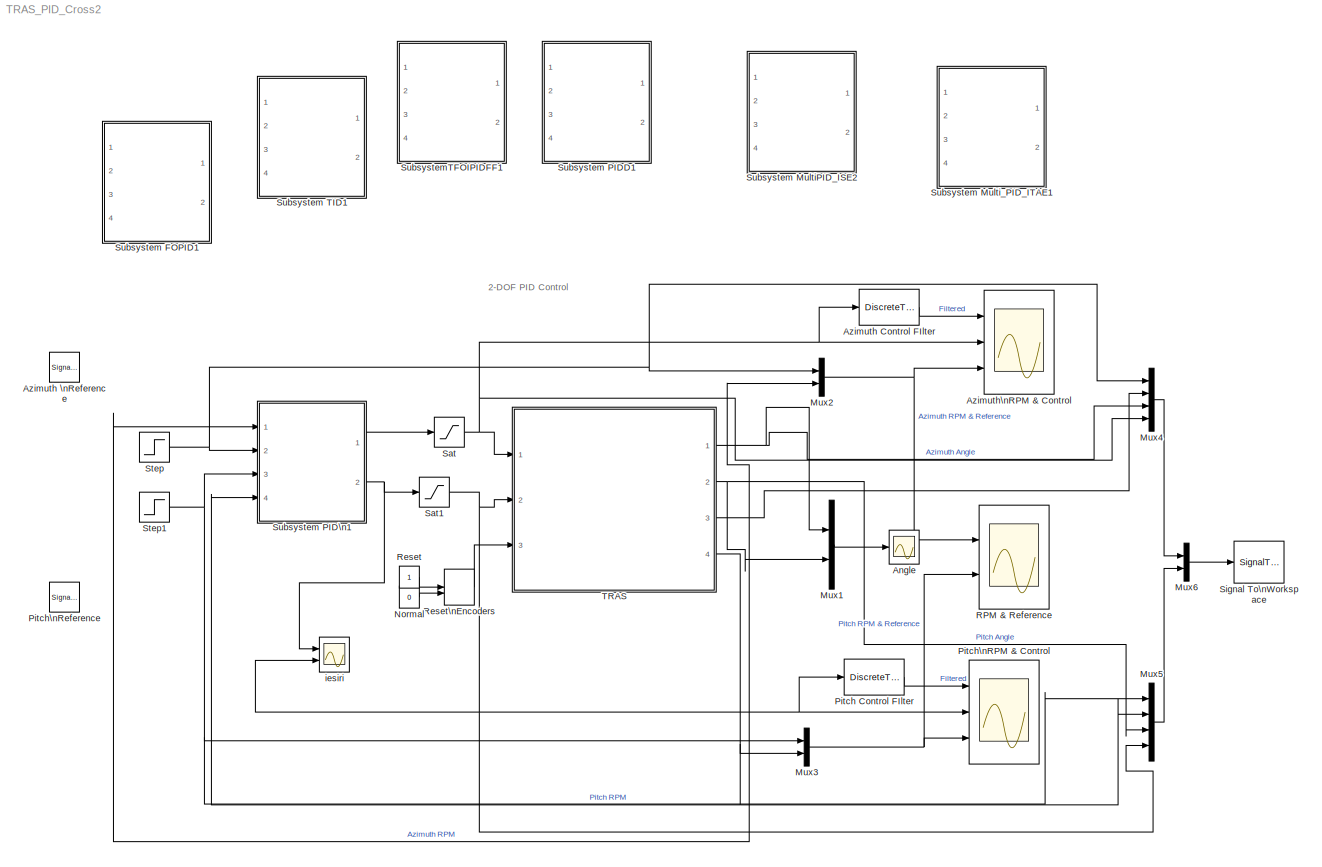
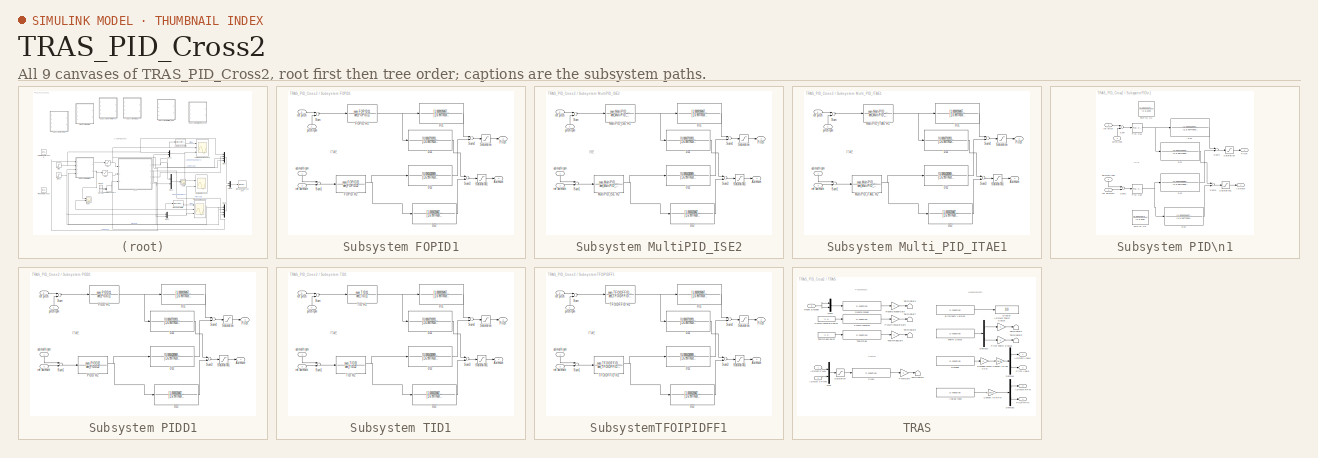
[diagram: thumbnail index - all 9 canvases of the model, root first then tree order]
MODEL TRAS_PID_Cross2
KIND model
BLOCK [Scope] Angle
  DataFormat = StructureWithTime
  ExtModeLoggingTrig = on
  ExtModeUploadOption = log
  Floating = off
  MaxDataPoints = 12000
  NumInputPorts = 1
  Ports = [1]
  SID = 45
  SampleTime = 0
  SaveName = RPM_
  SaveToWorkspace = on
  ShowLegends = off
  TimeRange = 90
  YMax = 0.5
  YMin = -0.8
BLOCK [DiscreteTransferFcn] Azimuth Control FIlter
  Denominator = [1.0000   -3.9845    6.4349   -5.2536    2.1651   -0.3599]
  InputPortMap = u0
  Numerator = [0.0598    0.2990    0.5980    0.5980    0.2990    0.0598] * 1e-3
  Ports = [1, 1]
  SID = 4
  SampleTime = 0.01
BLOCK [SignalGenerator] Azimuth \nReference
  Amplitude = .8
  Frequency = .025
  Ports = [0, 1]
  SID = 3
  WaveForm = square
BLOCK [Scope] Azimuth\nRPM & Control
  DataFormat = StructureWithTime
  ExtModeLoggingTrig = on
  ExtModeUploadOption = log
  Floating = off
  MaxDataPoints = 12000
  NumInputPorts = 3
  Ports = [3]
  SID = 2
  SampleTime = 0
  SaveName = AngleCtrl_
  SaveToWorkspace = on
  ShowLegends = off
  TimeRange = 90
  YMax = -0.225~0.5~250
  YMin = -0.4~-0.5~-2000
  ZoomMode = xonly
BLOCK [Mux] Mux1
  DisplayOption = bar
  Inputs = 2
  Ports = [2, 1]
  SID = 6
BLOCK [Mux] Mux2
  DisplayOption = bar
  Inputs = 2
  Ports = [2, 1]
  SID = 7
BLOCK [Mux] Mux3
  DisplayOption = bar
  Inputs = 2
  Ports = [2, 1]
  SID = 8
BLOCK [Mux] Mux4
  DisplayOption = bar
  Ports = [4, 1]
  SID = 163
BLOCK [Mux] Mux5
  DisplayOption = bar
  Ports = [4, 1]
  SID = 164
BLOCK [Mux] Mux6
  DisplayOption = bar
  Inputs = 2
  Ports = [2, 1]
  SID = 248
BLOCK [Constant] Normal
  SID = 9
  Value = 0
BLOCK [DiscreteTransferFcn] Pitch Control FIlter
  Denominator = [1.0000   -3.9845    6.4349   -5.2536    2.1651   -0.3599]
  InputPortMap = u0
  Numerator = [0.0598    0.2990    0.5980    0.5980    0.2990    0.0598] * 1e-3
  Ports = [1, 1]
  SID = 44
  SampleTime = 0.01
BLOCK [Scope] Pitch\nRPM & Control
  DataFormat = StructureWithTime
  ExtModeLoggingTrig = on
  ExtModeUploadOption = log
  Floating = off
  MaxDataPoints = 12000
  NumInputPorts = 3
  Ports = [3]
  SID = 42
  SampleTime = 0
  SaveName = AngleCtrl1_
  SaveToWorkspace = on
  ShowLegends = off
  TimeRange = 90
  YMax = 0.75~0.9~100
  YMin = 2.77556e-17~-0.1~-1300
BLOCK [SignalGenerator] Pitch\nReference
  Amplitude = .3
  Frequency = 1/30
  Ports = [0, 1]
  SID = 43
BLOCK [Scope] RPM & Reference
  DataFormat = StructureWithTime
  ExtModeLoggingTrig = on
  ExtModeUploadOption = log
  Floating = off
  MaxDataPoints = 12000
  NumInputPorts = 2
  Ports = [2]
  SID = 1
  SampleTime = 0
  SaveName = AngleReference_
  SaveToWorkspace = on
  ShowLegends = off
  TimeRange = 90
  YMax = 1250~125
  YMin = -1000~-100
  ZoomMode = xonly
BLOCK [Constant] Reset
  SID = 46
BLOCK [ManualSwitch] Reset\nEncoders
  CurrentSetting = 0
  SID = 47
BLOCK [Saturate] Sat
  InputPortMap = u0
  Ports = [1, 1]
  SID = 48
BLOCK [Saturate] Sat1
  InputPortMap = u0
  LowerLimit = -.2
  Ports = [1, 1]
  SID = 49
  UpperLimit = 1
BLOCK [SignalToWorkspace] Signal To\nWorkspace
  CopyFcn = dspblkcopystw(gcbh);
  MaxDataPoints = inf
  Ports = [1]
  SID = 249
  VariableName = step_pitch
BLOCK [Step] Step
  After = 0
  SID = 161
  SampleTime = 0
  Time = 0
BLOCK [Step] Step1
  After = 0.5
  SID = 162
  SampleTime = 0
  Time = 0
BLOCK [SubSystem] Subsystem FOPID1
  Commented = on
  FunctionWithSeparateData = off
  MaskHideContents = off
  MinAlgLoopOccurrences = off
  Opaque = off
  Ports = [4, 2]
  PropExecContextOutsideSubsystem = off
  RTWSystemCode = Auto
  RequestExecContextInheritance = off
  SID = 626
BLOCK [Outport] Subsystem FOPID1/Azimuth
  IconDisplay = Port number
  SID = 643
BLOCK [TransferFcn] Subsystem FOPID1/D11
  Denominator = [1,6.99777659725802,7.50512468468497]
  Numerator = [1.00000284679131,6.99779030125994,7.50513760323875]
  SID = 631
BLOCK [TransferFcn] Subsystem FOPID1/D12
  Denominator = [1,6.99777659725803,7.50512468468505]
  Numerator = [0.00604389897710873,0.0157679645959730,0.0102823375259034]
  SID = 632
BLOCK [TransferFcn] Subsystem FOPID1/D21
  Denominator = [1,6.99777659725802,7.50512468468497]
  Numerator = [0.000471020349710704,0.00433466168519442,0.00942932713768640]
  SID = 633
BLOCK [TransferFcn] Subsystem FOPID1/D22
  Denominator = [1,6.99777659725803,7.50512468468505]
  Numerator = [1.00000284679131,6.99779030126001,7.50513760323899]
  SID = 634
BLOCK [TransferFcn] Subsystem FOPID1/FOPID H1
  Denominator = den_FOPID11
  Numerator = num_FOPID11
  SID = 635
BLOCK [TransferFcn] Subsystem FOPID1/FOPID H2
  Denominator = den_FOPID22
  Numerator = num_FOPID22
  SID = 636
BLOCK [Outport] Subsystem FOPID1/Pitch
  IconDisplay = Port number
  Port = 2
  SID = 644
BLOCK [Saturate] Subsystem FOPID1/Saturation
  InputPortMap = u0
  Ports = [1, 1]
  SID = 637
BLOCK [Saturate] Subsystem FOPID1/Saturation1
  InputPortMap = u0
  LowerLimit = -0.2
  Ports = [1, 1]
  SID = 638
  UpperLimit = 1
BLOCK [Sum] Subsystem FOPID1/Sum
  InputSameDT = off
  Inputs = +-
  OutDataTypeStr = Inherit: Inherit via internal rule
  Ports = [2, 1]
  SID = 639
BLOCK [Sum] Subsystem FOPID1/Sum1
  InputSameDT = off
  Inputs = -+
  OutDataTypeStr = Inherit: Inherit via internal rule
  Ports = [2, 1]
  SID = 640
BLOCK [Sum] Subsystem FOPID1/Sum3
  InputSameDT = off
  OutDataTypeStr = Inherit: Inherit via internal rule
  Ports = [2, 1]
  SID = 641
BLOCK [Sum] Subsystem FOPID1/Sum4
  InputSameDT = off
  OutDataTypeStr = Inherit: Inherit via internal rule
  Ports = [2, 1]
  SID = 642
BLOCK [Inport] Subsystem FOPID1/azimuth rpm
  IconDisplay = Port number
  SID = 627
BLOCK [Inport] Subsystem FOPID1/pitch rpm
  IconDisplay = Port number
  Port = 4
  SID = 630
BLOCK [Inport] Subsystem FOPID1/ref azimuth
  IconDisplay = Port number
  Port = 2
  SID = 628
BLOCK [Inport] Subsystem FOPID1/ref pitch
  IconDisplay = Port number
  Port = 3
  SID = 629
BLOCK [SubSystem] Subsystem MultiPID_ISE2
  Commented = on
  FunctionWithSeparateData = off
  MaskHideContents = off
  MinAlgLoopOccurrences = off
  Opaque = off
  Ports = [4, 2]
  PropExecContextOutsideSubsystem = off
  RTWSystemCode = Auto
  RequestExecContextInheritance = off
  SID = 472
BLOCK [Outport] Subsystem MultiPID_ISE2/Azimuth
  IconDisplay = Port number
  SID = 489
BLOCK [TransferFcn] Subsystem MultiPID_ISE2/D11
  Denominator = [1,6.99777659725802,7.50512468468497]
  Numerator = [1.00000284679131,6.99779030125994,7.50513760323875]
  SID = 477
BLOCK [TransferFcn] Subsystem MultiPID_ISE2/D12
  Denominator = [1,6.99777659725803,7.50512468468505]
  Numerator = [0.00604389897710873,0.0157679645959730,0.0102823375259034]
  SID = 478
BLOCK [TransferFcn] Subsystem MultiPID_ISE2/D21
  Denominator = [1,6.99777659725802,7.50512468468497]
  Numerator = [0.000471020349710704,0.00433466168519442,0.00942932713768640]
  SID = 479
BLOCK [TransferFcn] Subsystem MultiPID_ISE2/D22
  Denominator = [1,6.99777659725803,7.50512468468505]
  Numerator = [1.00000284679131,6.99779030126001,7.50513760323899]
  SID = 480
BLOCK [TransferFcn] Subsystem MultiPID_ISE2/MultiPID_ISE H1
  Denominator = den_MultiPID_ISE11
  Numerator = num_MultiPID_ISE11
  SID = 481
BLOCK [TransferFcn] Subsystem MultiPID_ISE2/MultiPID_ISE H2
  Denominator = den_MultiPID_ISE22
  Numerator = num_MultiPID_ISE22
  SID = 482
BLOCK [Outport] Subsystem MultiPID_ISE2/Pitch
  IconDisplay = Port number
  Port = 2
  SID = 490
BLOCK [Saturate] Subsystem MultiPID_ISE2/Saturation
  InputPortMap = u0
  Ports = [1, 1]
  SID = 483
BLOCK [Saturate] Subsystem MultiPID_ISE2/Saturation1
  InputPortMap = u0
  LowerLimit = -0.2
  Ports = [1, 1]
  SID = 484
  UpperLimit = 1
BLOCK [Sum] Subsystem MultiPID_ISE2/Sum
  InputSameDT = off
  Inputs = +-
  OutDataTypeStr = Inherit: Inherit via internal rule
  Ports = [2, 1]
  SID = 485
BLOCK [Sum] Subsystem MultiPID_ISE2/Sum1
  InputSameDT = off
  Inputs = -+
  OutDataTypeStr = Inherit: Inherit via internal rule
  Ports = [2, 1]
  SID = 486
BLOCK [Sum] Subsystem MultiPID_ISE2/Sum3
  InputSameDT = off
  OutDataTypeStr = Inherit: Inherit via internal rule
  Ports = [2, 1]
  SID = 487
BLOCK [Sum] Subsystem MultiPID_ISE2/Sum4
  InputSameDT = off
  OutDataTypeStr = Inherit: Inherit via internal rule
  Ports = [2, 1]
  SID = 488
BLOCK [Inport] Subsystem MultiPID_ISE2/azimuth rpm
  IconDisplay = Port number
  SID = 473
BLOCK [Inport] Subsystem MultiPID_ISE2/pitch rpm
  IconDisplay = Port number
  Port = 4
  SID = 476
BLOCK [Inport] Subsystem MultiPID_ISE2/ref azimuth
  IconDisplay = Port number
  Port = 2
  SID = 474
BLOCK [Inport] Subsystem MultiPID_ISE2/ref pitch
  IconDisplay = Port number
  Port = 3
  SID = 475
BLOCK [SubSystem] Subsystem Multi_PID_ITAE1
  Commented = on
  FunctionWithSeparateData = off
  MaskHideContents = off
  MinAlgLoopOccurrences = off
  Opaque = off
  Ports = [4, 2]
  PropExecContextOutsideSubsystem = off
  RTWSystemCode = Auto
  RequestExecContextInheritance = off
  SID = 526
BLOCK [Outport] Subsystem Multi_PID_ITAE1/Azimuth
  IconDisplay = Port number
  SID = 543
BLOCK [TransferFcn] Subsystem Multi_PID_ITAE1/D11
  Denominator = [1,6.99777659725802,7.50512468468497]
  Numerator = [1.00000284679131,6.99779030125994,7.50513760323875]
  SID = 531
BLOCK [TransferFcn] Subsystem Multi_PID_ITAE1/D12
  Denominator = [1,6.99777659725803,7.50512468468505]
  Numerator = [0.00604389897710873,0.0157679645959730,0.0102823375259034]
  SID = 532
BLOCK [TransferFcn] Subsystem Multi_PID_ITAE1/D21
  Denominator = [1,6.99777659725802,7.50512468468497]
  Numerator = [0.000471020349710704,0.00433466168519442,0.00942932713768640]
  SID = 533
BLOCK [TransferFcn] Subsystem Multi_PID_ITAE1/D22
  Denominator = [1,6.99777659725803,7.50512468468505]
  Numerator = [1.00000284679131,6.99779030126001,7.50513760323899]
  SID = 534
BLOCK [TransferFcn] Subsystem Multi_PID_ITAE1/MultiPID_ITAE H1
  Denominator = den_MultiPID_ITAE11
  Numerator = num_MultiPID_ITAE11
  SID = 535
BLOCK [TransferFcn] Subsystem Multi_PID_ITAE1/MultiPID_ITAE H2
  Denominator = den_MultiPID_ITAE22
  Numerator = num_MultiPID_ITAE22
  SID = 536
BLOCK [Outport] Subsystem Multi_PID_ITAE1/Pitch
  IconDisplay = Port number
  Port = 2
  SID = 544
BLOCK [Saturate] Subsystem Multi_PID_ITAE1/Saturation
  InputPortMap = u0
  Ports = [1, 1]
  SID = 537
BLOCK [Saturate] Subsystem Multi_PID_ITAE1/Saturation1
  InputPortMap = u0
  LowerLimit = -0.2
  Ports = [1, 1]
  SID = 538
  UpperLimit = 1
BLOCK [Sum] Subsystem Multi_PID_ITAE1/Sum
  InputSameDT = off
  Inputs = +-
  OutDataTypeStr = Inherit: Inherit via internal rule
  Ports = [2, 1]
  SID = 539
BLOCK [Sum] Subsystem Multi_PID_ITAE1/Sum1
  InputSameDT = off
  Inputs = -+
  OutDataTypeStr = Inherit: Inherit via internal rule
  Ports = [2, 1]
  SID = 540
BLOCK [Sum] Subsystem Multi_PID_ITAE1/Sum3
  InputSameDT = off
  OutDataTypeStr = Inherit: Inherit via internal rule
  Ports = [2, 1]
  SID = 541
BLOCK [Sum] Subsystem Multi_PID_ITAE1/Sum4
  InputSameDT = off
  OutDataTypeStr = Inherit: Inherit via internal rule
  Ports = [2, 1]
  SID = 542
BLOCK [Inport] Subsystem Multi_PID_ITAE1/azimuth rpm
  IconDisplay = Port number
  SID = 527
BLOCK [Inport] Subsystem Multi_PID_ITAE1/pitch rpm
  IconDisplay = Port number
  Port = 4
  SID = 530
BLOCK [Inport] Subsystem Multi_PID_ITAE1/ref azimuth
  IconDisplay = Port number
  Port = 2
  SID = 528
BLOCK [Inport] Subsystem Multi_PID_ITAE1/ref pitch
  IconDisplay = Port number
  Port = 3
  SID = 529
BLOCK [SubSystem] Subsystem PIDD1
  Commented = on
  FunctionWithSeparateData = off
  MaskHideContents = off
  MinAlgLoopOccurrences = off
  Opaque = off
  Ports = [4, 2]
  PropExecContextOutsideSubsystem = off
  RTWSystemCode = Auto
  RequestExecContextInheritance = off
  SID = 566
BLOCK [Outport] Subsystem PIDD1/Azimuth
  IconDisplay = Port number
  SID = 583
BLOCK [TransferFcn] Subsystem PIDD1/D11
  Denominator = [1,6.99777659725802,7.50512468468497]
  Numerator = [1.00000284679131,6.99779030125994,7.50513760323875]
  SID = 571
BLOCK [TransferFcn] Subsystem PIDD1/D12
  Denominator = [1,6.99777659725803,7.50512468468505]
  Numerator = [0.00604389897710873,0.0157679645959730,0.0102823375259034]
  SID = 572
BLOCK [TransferFcn] Subsystem PIDD1/D21
  Denominator = [1,6.99777659725802,7.50512468468497]
  Numerator = [0.000471020349710704,0.00433466168519442,0.00942932713768640]
  SID = 573
BLOCK [TransferFcn] Subsystem PIDD1/D22
  Denominator = [1,6.99777659725803,7.50512468468505]
  Numerator = [1.00000284679131,6.99779030126001,7.50513760323899]
  SID = 574
BLOCK [TransferFcn] Subsystem PIDD1/PIDD H1
  Denominator = den_PIDD11
  Numerator = num_PIDD11
  SID = 575
BLOCK [TransferFcn] Subsystem PIDD1/PIDD H2
  Denominator = den_PIDD22
  Numerator = num_PIDD22
  SID = 576
BLOCK [Outport] Subsystem PIDD1/Pitch
  IconDisplay = Port number
  Port = 2
  SID = 584
BLOCK [Saturate] Subsystem PIDD1/Saturation
  InputPortMap = u0
  Ports = [1, 1]
  SID = 577
BLOCK [Saturate] Subsystem PIDD1/Saturation1
  InputPortMap = u0
  LowerLimit = -0.2
  Ports = [1, 1]
  SID = 578
  UpperLimit = 1
BLOCK [Sum] Subsystem PIDD1/Sum
  InputSameDT = off
  Inputs = +-
  OutDataTypeStr = Inherit: Inherit via internal rule
  Ports = [2, 1]
  SID = 579
BLOCK [Sum] Subsystem PIDD1/Sum1
  InputSameDT = off
  Inputs = -+
  OutDataTypeStr = Inherit: Inherit via internal rule
  Ports = [2, 1]
  SID = 580
BLOCK [Sum] Subsystem PIDD1/Sum3
  InputSameDT = off
  OutDataTypeStr = Inherit: Inherit via internal rule
  Ports = [2, 1]
  SID = 581
BLOCK [Sum] Subsystem PIDD1/Sum4
  InputSameDT = off
  OutDataTypeStr = Inherit: Inherit via internal rule
  Ports = [2, 1]
  SID = 582
BLOCK [Inport] Subsystem PIDD1/azimuth rpm
  IconDisplay = Port number
  SID = 567
BLOCK [Inport] Subsystem PIDD1/pitch rpm
  IconDisplay = Port number
  Port = 4
  SID = 570
BLOCK [Inport] Subsystem PIDD1/ref azimuth
  IconDisplay = Port number
  Port = 2
  SID = 568
BLOCK [Inport] Subsystem PIDD1/ref pitch
  IconDisplay = Port number
  Port = 3
  SID = 569
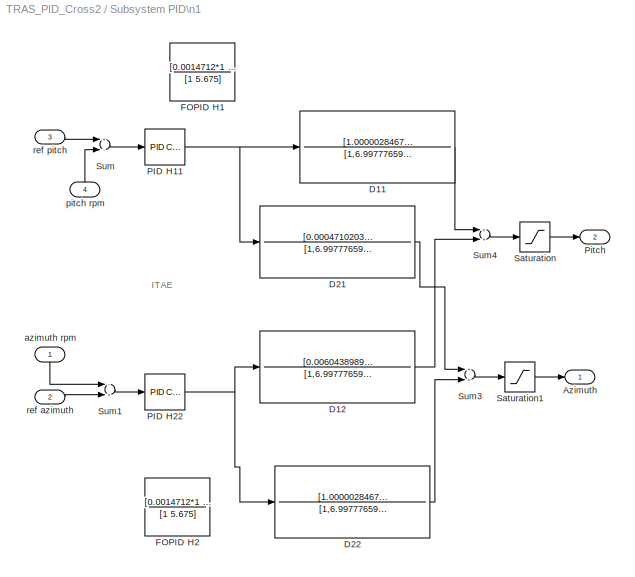
BLOCK [SubSystem] Subsystem PID\n1
  FunctionWithSeparateData = off
  MaskHideContents = off
  MinAlgLoopOccurrences = off
  Opaque = off
  Ports = [4, 2]
  PropExecContextOutsideSubsystem = off
  RTWSystemCode = Auto
  RequestExecContextInheritance = off
  SID = 370
BLOCK [Outport] Subsystem PID\n1/Azimuth
  IconDisplay = Port number
  SID = 389
BLOCK [TransferFcn] Subsystem PID\n1/D11
  Denominator = [1,6.99777659725802,7.50512468468497]
  Numerator = [1.00000284679131,6.99779030125994,7.50513760323875]
  SID = 375
BLOCK [TransferFcn] Subsystem PID\n1/D12
  Denominator = [1,6.99777659725803,7.50512468468505]
  Numerator = [0.00604389897710873,0.0157679645959730,0.0102823375259034]
  SID = 376
BLOCK [TransferFcn] Subsystem PID\n1/D21
  Denominator = [1,6.99777659725802,7.50512468468497]
  Numerator = [0.000471020349710704,0.00433466168519442,0.00942932713768640]
  SID = 377
BLOCK [TransferFcn] Subsystem PID\n1/D22
  Denominator = [1,6.99777659725803,7.50512468468505]
  Numerator = [1.00000284679131,6.99779030126001,7.50513760323899]
  SID = 378
BLOCK [TransferFcn] Subsystem PID\n1/FOPID H1
  Denominator = [1 5.675]
  Numerator = [0.0014712*1    0.0014712*3.527]
  SID = 379
BLOCK [TransferFcn] Subsystem PID\n1/FOPID H2
  Denominator = [1 5.675]
  Numerator = [0.0014712*1    0.0014712*3.527]
  SID = 380
BLOCK [Reference] Subsystem PID\n1/PID H11  REF=simulink/Continuous/PID Controller
  AntiWindupMode = none
  Controller = PID
  D = 0
  DOutDataTypeStr = Inherit: Inherit via internal rule
  DOutMax = []
  DOutMin = []
  DParamDataTypeStr = Inherit: Inherit via internal rule
  DParamMax = []
  DParamMin = []
  ExternalReset = none
  FilterContinuousStateAttributes = ''
  FilterMethod = Forward Euler
  FilterOutDataTypeStr = Inherit: Inherit via internal rule
  FilterOutMax = []
  FilterOutMin = []
  FilterRTWStateStorageClass = Auto
  FilterStateMustResolveToSignalObject = off
  Form = Parallel
  I = 0.765
  IOutDataTypeStr = Inherit: Inherit via internal rule
  IOutMax = []
  IOutMin = []
  IParamDataTypeStr = Inherit: Inherit via internal rule
  IParamMax = []
  IParamMin = []
  IgnoreLimit = off
  InitialConditionForFilter = 0
  InitialConditionForIntegrator = 0
  InitialConditionSource = internal
  IntegratorContinuousStateAttributes = ''
  IntegratorMethod = Forward Euler
  IntegratorOutDataTypeStr = Inherit: Inherit via internal rule
  IntegratorOutMax = []
  IntegratorOutMin = []
  IntegratorRTWStateStorageClass = Auto
  IntegratorStateMustResolveToSignalObject = off
  Kb = 1
  KbOutDataTypeStr = Inherit: Inherit via internal rule
  KbOutMax = []
  KbOutMin = []
  KbParamDataTypeStr = Inherit: Inherit via internal rule
  KbParamMax = []
  KbParamMin = []
  Kt = 1
  KtOutDataTypeStr = Inherit: Inherit via internal rule
  KtOutMax = []
  KtOutMin = []
  KtParamDataTypeStr = Inherit: Inherit via internal rule
  KtParamMax = []
  KtParamMin = []
  LimitOutput = off
  LinearizeAsGain = off
  LockScale = off
  LowerSaturationLimit = -inf
  N = 100
  NOutDataTypeStr = Inherit: Inherit via internal rule
  NOutMax = []
  NOutMin = []
  NParamDataTypeStr = Inherit: Inherit via internal rule
  NParamMax = []
  NParamMin = []
  P = 0.595
  POutDataTypeStr = Inherit: Inherit via internal rule
  POutMax = []
  POutMin = []
  PParamDataTypeStr = Inherit: Inherit via internal rule
  PParamMax = []
  PParamMin = []
  Ports = [1, 1]
  RndMeth = Floor
  SID = 381
  SampleTime = 1
  SaturateOnIntegerOverflow = off
  SaturationOutDataTypeStr = Inherit: Same as input
  SaturationOutMax = []
  SaturationOutMin = []
  SourceBlock = simulink/Continuous/PID Controller
  SourceType = PID 1dof
  SumAccumDataTypeStr = Inherit: Inherit via internal rule
  SumDAccumDataTypeStr = Inherit: Inherit via internal rule
  SumDOutDataTypeStr = Inherit: Inherit via internal rule
  SumDOutMax = []
  SumDOutMin = []
  SumI1AccumDataTypeStr = Inherit: Inherit via internal rule
  SumI1OutDataTypeStr = Inherit: Inherit via internal rule
  SumI1OutMax = []
  SumI1OutMin = []
  SumI2AccumDataTypeStr = Inherit: Inherit via internal rule
  SumI2OutDataTypeStr = Inherit: Inherit via internal rule
  SumI2OutMax = []
  SumI2OutMin = []
  SumI3AccumDataTypeStr = Inherit: Inherit via internal rule
  SumI3OutDataTypeStr = Inherit: Inherit via internal rule
  SumI3OutMax = []
  SumI3OutMin = []
  SumOutDataTypeStr = Inherit: Inherit via internal rule
  SumOutMax = []
  SumOutMin = []
  TimeDomain = Continuous-time
  TrackingMode = off
  UpperSaturationLimit = inf
  ZeroCross = on
BLOCK [Reference] Subsystem PID\n1/PID H22  REF=simulink/Continuous/PID Controller
  AntiWindupMode = none
  Controller = PID
  D = 0
  DOutDataTypeStr = Inherit: Inherit via internal rule
  DOutMax = []
  DOutMin = []
  DParamDataTypeStr = Inherit: Inherit via internal rule
  DParamMax = []
  DParamMin = []
  ExternalReset = none
  FilterContinuousStateAttributes = ''
  FilterMethod = Forward Euler
  FilterOutDataTypeStr = Inherit: Inherit via internal rule
  FilterOutMax = []
  FilterOutMin = []
  FilterRTWStateStorageClass = Auto
  FilterStateMustResolveToSignalObject = off
  Form = Parallel
  I = 51.1
  IOutDataTypeStr = Inherit: Inherit via internal rule
  IOutMax = []
  IOutMin = []
  IParamDataTypeStr = Inherit: Inherit via internal rule
  IParamMax = []
  IParamMin = []
  IgnoreLimit = off
  InitialConditionForFilter = 0
  InitialConditionForIntegrator = 0
  InitialConditionSource = internal
  IntegratorContinuousStateAttributes = ''
  IntegratorMethod = Forward Euler
  IntegratorOutDataTypeStr = Inherit: Inherit via internal rule
  IntegratorOutMax = []
  IntegratorOutMin = []
  IntegratorRTWStateStorageClass = Auto
  IntegratorStateMustResolveToSignalObject = off
  Kb = 1
  KbOutDataTypeStr = Inherit: Inherit via internal rule
  KbOutMax = []
  KbOutMin = []
  KbParamDataTypeStr = Inherit: Inherit via internal rule
  KbParamMax = []
  KbParamMin = []
  Kt = 1
  KtOutDataTypeStr = Inherit: Inherit via internal rule
  KtOutMax = []
  KtOutMin = []
  KtParamDataTypeStr = Inherit: Inherit via internal rule
  KtParamMax = []
  KtParamMin = []
  LimitOutput = off
  LinearizeAsGain = off
  LockScale = off
  LowerSaturationLimit = -inf
  N = 100
  NOutDataTypeStr = Inherit: Inherit via internal rule
  NOutMax = []
  NOutMin = []
  NParamDataTypeStr = Inherit: Inherit via internal rule
  NParamMax = []
  NParamMin = []
  P = 0.067
  POutDataTypeStr = Inherit: Inherit via internal rule
  POutMax = []
  POutMin = []
  PParamDataTypeStr = Inherit: Inherit via internal rule
  PParamMax = []
  PParamMin = []
  Ports = [1, 1]
  RndMeth = Floor
  SID = 382
  SampleTime = 1
  SaturateOnIntegerOverflow = off
  SaturationOutDataTypeStr = Inherit: Same as input
  SaturationOutMax = []
  SaturationOutMin = []
  SourceBlock = simulink/Continuous/PID Controller
  SourceType = PID 1dof
  SumAccumDataTypeStr = Inherit: Inherit via internal rule
  SumDAccumDataTypeStr = Inherit: Inherit via internal rule
  SumDOutDataTypeStr = Inherit: Inherit via internal rule
  SumDOutMax = []
  SumDOutMin = []
  SumI1AccumDataTypeStr = Inherit: Inherit via internal rule
  SumI1OutDataTypeStr = Inherit: Inherit via internal rule
  SumI1OutMax = []
  SumI1OutMin = []
  SumI2AccumDataTypeStr = Inherit: Inherit via internal rule
  SumI2OutDataTypeStr = Inherit: Inherit via internal rule
  SumI2OutMax = []
  SumI2OutMin = []
  SumI3AccumDataTypeStr = Inherit: Inherit via internal rule
  SumI3OutDataTypeStr = Inherit: Inherit via internal rule
  SumI3OutMax = []
  SumI3OutMin = []
  SumOutDataTypeStr = Inherit: Inherit via internal rule
  SumOutMax = []
  SumOutMin = []
  TimeDomain = Continuous-time
  TrackingMode = off
  UpperSaturationLimit = inf
  ZeroCross = on
BLOCK [Outport] Subsystem PID\n1/Pitch
  IconDisplay = Port number
  Port = 2
  SID = 390
BLOCK [Saturate] Subsystem PID\n1/Saturation
  InputPortMap = u0
  Ports = [1, 1]
  SID = 383
BLOCK [Saturate] Subsystem PID\n1/Saturation1
  InputPortMap = u0
  LowerLimit = -0.2
  Ports = [1, 1]
  SID = 384
  UpperLimit = 1
BLOCK [Sum] Subsystem PID\n1/Sum
  InputSameDT = off
  Inputs = +-
  OutDataTypeStr = Inherit: Inherit via internal rule
  Ports = [2, 1]
  SID = 385
BLOCK [Sum] Subsystem PID\n1/Sum1
  InputSameDT = off
  Inputs = -+
  OutDataTypeStr = Inherit: Inherit via internal rule
  Ports = [2, 1]
  SID = 386
BLOCK [Sum] Subsystem PID\n1/Sum3
  InputSameDT = off
  OutDataTypeStr = Inherit: Inherit via internal rule
  Ports = [2, 1]
  SID = 387
BLOCK [Sum] Subsystem PID\n1/Sum4
  InputSameDT = off
  OutDataTypeStr = Inherit: Inherit via internal rule
  Ports = [2, 1]
  SID = 388
BLOCK [Inport] Subsystem PID\n1/azimuth rpm
  IconDisplay = Port number
  SID = 371
BLOCK [Inport] Subsystem PID\n1/pitch rpm
  IconDisplay = Port number
  Port = 4
  SID = 374
BLOCK [Inport] Subsystem PID\n1/ref azimuth
  IconDisplay = Port number
  Port = 2
  SID = 372
BLOCK [Inport] Subsystem PID\n1/ref pitch
  IconDisplay = Port number
  Port = 3
  SID = 373
BLOCK [SubSystem] Subsystem TID1
  Commented = on
  FunctionWithSeparateData = off
  MaskHideContents = off
  MinAlgLoopOccurrences = off
  Opaque = off
  Ports = [4, 2]
  PropExecContextOutsideSubsystem = off
  RTWSystemCode = Auto
  RequestExecContextInheritance = off
  SID = 606
BLOCK [Outport] Subsystem TID1/Azimuth
  IconDisplay = Port number
  SID = 623
BLOCK [TransferFcn] Subsystem TID1/D11
  Denominator = [1,6.99777659725802,7.50512468468497]
  Numerator = [1.00000284679131,6.99779030125994,7.50513760323875]
  SID = 611
BLOCK [TransferFcn] Subsystem TID1/D12
  Denominator = [1,6.99777659725803,7.50512468468505]
  Numerator = [0.00604389897710873,0.0157679645959730,0.0102823375259034]
  SID = 612
BLOCK [TransferFcn] Subsystem TID1/D21
  Denominator = [1,6.99777659725802,7.50512468468497]
  Numerator = [0.000471020349710704,0.00433466168519442,0.00942932713768640]
  SID = 613
BLOCK [TransferFcn] Subsystem TID1/D22
  Denominator = [1,6.99777659725803,7.50512468468505]
  Numerator = [1.00000284679131,6.99779030126001,7.50513760323899]
  SID = 614
BLOCK [Outport] Subsystem TID1/Pitch
  IconDisplay = Port number
  Port = 2
  SID = 624
BLOCK [Saturate] Subsystem TID1/Saturation
  InputPortMap = u0
  Ports = [1, 1]
  SID = 615
BLOCK [Saturate] Subsystem TID1/Saturation1
  InputPortMap = u0
  LowerLimit = -0.2
  Ports = [1, 1]
  SID = 616
  UpperLimit = 1
BLOCK [Sum] Subsystem TID1/Sum
  InputSameDT = off
  Inputs = +-
  OutDataTypeStr = Inherit: Inherit via internal rule
  Ports = [2, 1]
  SID = 617
BLOCK [Sum] Subsystem TID1/Sum1
  InputSameDT = off
  Inputs = -+
  OutDataTypeStr = Inherit: Inherit via internal rule
  Ports = [2, 1]
  SID = 618
BLOCK [Sum] Subsystem TID1/Sum3
  InputSameDT = off
  OutDataTypeStr = Inherit: Inherit via internal rule
  Ports = [2, 1]
  SID = 619
BLOCK [Sum] Subsystem TID1/Sum4
  InputSameDT = off
  OutDataTypeStr = Inherit: Inherit via internal rule
  Ports = [2, 1]
  SID = 620
BLOCK [TransferFcn] Subsystem TID1/TID H1
  Denominator = den_TID11
  Numerator = num_TID11
  SID = 621
BLOCK [TransferFcn] Subsystem TID1/TID H2
  Denominator = den_TID22
  Numerator = num_TID22
  SID = 622
BLOCK [Inport] Subsystem TID1/azimuth rpm
  IconDisplay = Port number
  SID = 607
BLOCK [Inport] Subsystem TID1/pitch rpm
  IconDisplay = Port number
  Port = 4
  SID = 610
BLOCK [Inport] Subsystem TID1/ref azimuth
  IconDisplay = Port number
  Port = 2
  SID = 608
BLOCK [Inport] Subsystem TID1/ref pitch
  IconDisplay = Port number
  Port = 3
  SID = 609
BLOCK [SubSystem] SubsystemTFOIPIDFF1
  Commented = on
  FunctionWithSeparateData = off
  MaskHideContents = off
  MinAlgLoopOccurrences = off
  Opaque = off
  Ports = [4, 2]
  PropExecContextOutsideSubsystem = off
  RTWSystemCode = Auto
  RequestExecContextInheritance = off
  SID = 586
BLOCK [Outport] SubsystemTFOIPIDFF1/Azimuth
  IconDisplay = Port number
  SID = 603
BLOCK [TransferFcn] SubsystemTFOIPIDFF1/D11
  Denominator = [1,6.99777659725802,7.50512468468497]
  Numerator = [1.00000284679131,6.99779030125994,7.50513760323875]
  SID = 591
BLOCK [TransferFcn] SubsystemTFOIPIDFF1/D12
  Denominator = [1,6.99777659725803,7.50512468468505]
  Numerator = [0.00604389897710873,0.0157679645959730,0.0102823375259034]
  SID = 592
BLOCK [TransferFcn] SubsystemTFOIPIDFF1/D21
  Denominator = [1,6.99777659725802,7.50512468468497]
  Numerator = [0.000471020349710704,0.00433466168519442,0.00942932713768640]
  SID = 593
BLOCK [TransferFcn] SubsystemTFOIPIDFF1/D22
  Denominator = [1,6.99777659725803,7.50512468468505]
  Numerator = [1.00000284679131,6.99779030126001,7.50513760323899]
  SID = 594
BLOCK [Outport] SubsystemTFOIPIDFF1/Pitch
  IconDisplay = Port number
  Port = 2
  SID = 604
BLOCK [Saturate] SubsystemTFOIPIDFF1/Saturation
  InputPortMap = u0
  Ports = [1, 1]
  SID = 595
BLOCK [Saturate] SubsystemTFOIPIDFF1/Saturation1
  InputPortMap = u0
  LowerLimit = -0.2
  Ports = [1, 1]
  SID = 596
  UpperLimit = 1
BLOCK [Sum] SubsystemTFOIPIDFF1/Sum
  InputSameDT = off
  Inputs = +-
  OutDataTypeStr = Inherit: Inherit via internal rule
  Ports = [2, 1]
  SID = 597
BLOCK [Sum] SubsystemTFOIPIDFF1/Sum1
  InputSameDT = off
  Inputs = -+
  OutDataTypeStr = Inherit: Inherit via internal rule
  Ports = [2, 1]
  SID = 598
BLOCK [Sum] SubsystemTFOIPIDFF1/Sum3
  InputSameDT = off
  OutDataTypeStr = Inherit: Inherit via internal rule
  Ports = [2, 1]
  SID = 599
BLOCK [Sum] SubsystemTFOIPIDFF1/Sum4
  InputSameDT = off
  OutDataTypeStr = Inherit: Inherit via internal rule
  Ports = [2, 1]
  SID = 600
BLOCK [TransferFcn] SubsystemTFOIPIDFF1/TFOIDFFID H1
  Denominator = den_TFOIDFFID11
  Numerator = num_TFOIDFFID11
  SID = 601
BLOCK [TransferFcn] SubsystemTFOIPIDFF1/TFOIDFFID H2
  Denominator = den_TFOIDFFID22
  Numerator = num_TFOIDFFID22
  SID = 602
BLOCK [Inport] SubsystemTFOIPIDFF1/azimuth rpm
  IconDisplay = Port number
  SID = 587
BLOCK [Inport] SubsystemTFOIPIDFF1/pitch rpm
  IconDisplay = Port number
  Port = 4
  SID = 590
BLOCK [Inport] SubsystemTFOIPIDFF1/ref azimuth
  IconDisplay = Port number
  Port = 2
  SID = 588
BLOCK [Inport] SubsystemTFOIPIDFF1/ref pitch
  IconDisplay = Port number
  Port = 3
  SID = 589
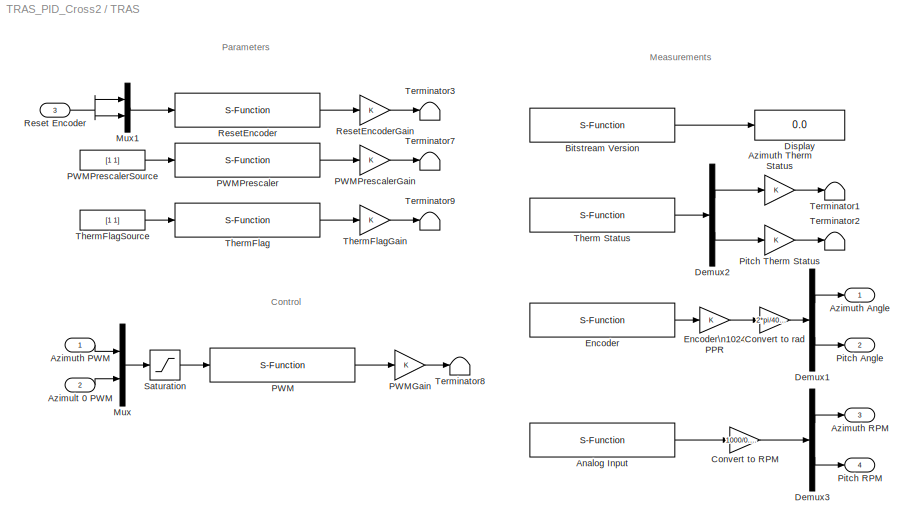
BLOCK [SubSystem] TRAS
  FunctionWithSeparateData = off
  MaskHideContents = off
  MinAlgLoopOccurrences = off
  Opaque = off
  Ports = [3, 4]
  PropExecContextOutsideSubsystem = off
  RTWSystemCode = Auto
  RequestExecContextInheritance = off
  SID = 55
BLOCK [S-Function] TRAS/Analog Input
  EnableBusSupport = off
  FunctionName = TRAS_AnalogInput
  Parameters = BaseAddress, [1 0], [1 1], T0
  Ports = [0, 1]
  SID = 59
BLOCK [Inport] TRAS/Azimult 0 PWM
  IconDisplay = Port number
  Port = 2
  SID = 57
BLOCK [Outport] TRAS/Azimuth Angle
  IconDisplay = Port number
  InitialOutput = 0
  SID = 91
BLOCK [Inport] TRAS/Azimuth PWM
  IconDisplay = Port number
  SID = 56
BLOCK [Outport] TRAS/Azimuth RPM
  IconDisplay = Port number
  InitialOutput = 0
  Port = 3
  SID = 93
BLOCK [Gain] TRAS/Azimuth Therm Status
  SID = 60
BLOCK [S-Function] TRAS/Bitstream Version
  EnableBusSupport = off
  FunctionName = TRAS_BitstreamVersion
  Parameters = BaseAddress, T0
  Ports = [0, 1]
  SID = 61
BLOCK [Gain] TRAS/Convert to RPM
  Gain = 1000/0.52/2
  SID = 62
BLOCK [Gain] TRAS/Convert to rad
  Gain = 2*pi/4096
  SID = 63
BLOCK [Demux] TRAS/Demux1
  Outputs = 2
  Ports = [1, 2]
  SID = 64
BLOCK [Demux] TRAS/Demux2
  Outputs = 2
  Ports = [1, 2]
  SID = 65
BLOCK [Demux] TRAS/Demux3
  Outputs = 2
  Ports = [1, 2]
  SID = 66
BLOCK [Display] TRAS/Display
  Decimation = 1
  Lockdown = off
  Ports = [1]
  SID = 67
BLOCK [S-Function] TRAS/Encoder
  EnableBusSupport = off
  FunctionName = TRAS_Encoder
  Parameters = BaseAddress, T0
  Ports = [0, 1]
  SID = 68
BLOCK [Gain] TRAS/Encoder\n1024 PPR
  SID = 69
BLOCK [Mux] TRAS/Mux
  Inputs = 2
  Ports = [2, 1]
  SID = 70
BLOCK [Mux] TRAS/Mux1
  Inputs = 2
  Ports = [2, 1]
  SID = 71
BLOCK [S-Function] TRAS/PWM
  EnableBusSupport = off
  FunctionName = TRAS_PWM
  Parameters = BaseAddress, T0
  Ports = [1, 1]
  SID = 72
BLOCK [Gain] TRAS/PWMGain
  SID = 73
BLOCK [S-Function] TRAS/PWMPrescaler
  EnableBusSupport = off
  FunctionName = TRAS_PWMPrescaler
  Parameters = BaseAddress, T0
  Ports = [1, 1]
  SID = 74
BLOCK [Gain] TRAS/PWMPrescalerGain
  SID = 75
BLOCK [Constant] TRAS/PWMPrescalerSource
  SID = 76
  Value = [1 1]
BLOCK [Outport] TRAS/Pitch Angle
  IconDisplay = Port number
  InitialOutput = 0
  Port = 2
  SID = 92
BLOCK [Outport] TRAS/Pitch RPM
  IconDisplay = Port number
  InitialOutput = 0
  Port = 4
  SID = 94
BLOCK [Gain] TRAS/Pitch Therm Status
  SID = 77
BLOCK [Inport] TRAS/Reset Encoder
  IconDisplay = Port number
  Port = 3
  SID = 58
BLOCK [S-Function] TRAS/ResetEncoder
  EnableBusSupport = off
  FunctionName = TRAS_ResetEncoder
  Parameters = BaseAddress, T0
  Ports = [1, 1]
  SID = 78
BLOCK [Gain] TRAS/ResetEncoderGain
  SID = 79
BLOCK [Saturate] TRAS/Saturation
  InputPortMap = u0
  LowerLimit = -1
  Ports = [1, 1]
  SID = 80
  UpperLimit = 1
BLOCK [Terminator] TRAS/Terminator1
  SID = 81
BLOCK [Terminator] TRAS/Terminator2
  SID = 82
BLOCK [Terminator] TRAS/Terminator3
  SID = 83
BLOCK [Terminator] TRAS/Terminator7
  SID = 84
BLOCK [Terminator] TRAS/Terminator8
  SID = 85
BLOCK [Terminator] TRAS/Terminator9
  SID = 86
BLOCK [S-Function] TRAS/Therm Status
  EnableBusSupport = off
  FunctionName = TRAS_PWMTherm
  Parameters = BaseAddress, T0
  Ports = [0, 1]
  SID = 87
BLOCK [S-Function] TRAS/ThermFlag 
  EnableBusSupport = off
  FunctionName = TRAS_ThermFlag
  Parameters = BaseAddress, T0
  Ports = [1, 1]
  SID = 88
BLOCK [Gain] TRAS/ThermFlagGain
  SID = 89
BLOCK [Constant] TRAS/ThermFlagSource
  SID = 90
  Value = [1 1]
BLOCK [Scope] iesiri
  DataFormat = StructureWithTime
  Floating = off
  MaxDataPoints = 12000
  NumInputPorts = 2
  Ports = [2]
  SID = 496
  SampleTime = 0
  SaveName = RPM_1
  SaveToWorkspace = on
  ShowLegends = off
  TimeRange = 90
  YMax = -0.5~-0.2
  YMin = -0.5~-0.2
  ZoomMode = yonly
ANNOTATION (root): 2-DOF PID Control
ANNOTATION Subsystem FOPID1: ITAE
ANNOTATION Subsystem MultiPID_ISE2: ISE
ANNOTATION Subsystem Multi_PID_ITAE1: ITAE
ANNOTATION Subsystem PIDD1: ITAE
ANNOTATION Subsystem PID\n1: ITAE
ANNOTATION Subsystem TID1: ITAE
ANNOTATION SubsystemTFOIPIDFF1: ITAE
ANNOTATION TRAS: Control
ANNOTATION TRAS: Measurements
ANNOTATION TRAS: Parameters
LINE Azimuth Control FIlter:1 -> Azimuth\nRPM & Control:1
LINE Mux1:1 -> Angle:1
NET Mux2:1 -> Azimuth\nRPM & Control:3, RPM & Reference:1
NET Mux3:1 -> Pitch\nRPM & Control:3, RPM & Reference:2
LINE Mux4:1 -> Mux6:1
LINE Mux5:1 -> Mux6:2
LINE Mux6:1 -> Signal To\nWorkspace:1
LINE Normal:1 -> Reset\nEncoders:2
LINE Pitch Control FIlter:1 -> Pitch\nRPM & Control:1
LINE Reset:1 -> Reset\nEncoders:1
LINE Reset\nEncoders:1 -> TRAS:3
NET Sat1:1 -> Mux5:4, Pitch Control FIlter:1, Pitch\nRPM & Control:2, TRAS:2, iesiri:2
NET Sat:1 -> Azimuth Control FIlter:1, Azimuth\nRPM & Control:2, Mux4:4, TRAS:1
NET Step1:1 -> Mux3:1, Mux5:1, Subsystem PID\n1:3
NET Step:1 -> Mux2:1, Mux4:1, Subsystem PID\n1:2
LINE Subsystem FOPID1/D11:1 -> Subsystem FOPID1/Sum4:1
LINE Subsystem FOPID1/D12:1 -> Subsystem FOPID1/Sum4:2
LINE Subsystem FOPID1/D21:1 -> Subsystem FOPID1/Sum3:1
LINE Subsystem FOPID1/D22:1 -> Subsystem FOPID1/Sum3:2
NET Subsystem FOPID1/FOPID H1:1 -> Subsystem FOPID1/D11:1, Subsystem FOPID1/D21:1
NET Subsystem FOPID1/FOPID H2:1 -> Subsystem FOPID1/D12:1, Subsystem FOPID1/D22:1
LINE Subsystem FOPID1/Saturation1:1 -> Subsystem FOPID1/Azimuth:1
LINE Subsystem FOPID1/Saturation:1 -> Subsystem FOPID1/Pitch:1
LINE Subsystem FOPID1/Sum1:1 -> Subsystem FOPID1/FOPID H2:1
LINE Subsystem FOPID1/Sum3:1 -> Subsystem FOPID1/Saturation1:1
LINE Subsystem FOPID1/Sum4:1 -> Subsystem FOPID1/Saturation:1
LINE Subsystem FOPID1/Sum:1 -> Subsystem FOPID1/FOPID H1:1
LINE Subsystem FOPID1/azimuth rpm:1 -> Subsystem FOPID1/Sum1:1
LINE Subsystem FOPID1/pitch rpm:1 -> Subsystem FOPID1/Sum:2
LINE Subsystem FOPID1/ref azimuth:1 -> Subsystem FOPID1/Sum1:2
LINE Subsystem FOPID1/ref pitch:1 -> Subsystem FOPID1/Sum:1
LINE Subsystem MultiPID_ISE2/D11:1 -> Subsystem MultiPID_ISE2/Sum4:1
LINE Subsystem MultiPID_ISE2/D12:1 -> Subsystem MultiPID_ISE2/Sum4:2
LINE Subsystem MultiPID_ISE2/D21:1 -> Subsystem MultiPID_ISE2/Sum3:1
LINE Subsystem MultiPID_ISE2/D22:1 -> Subsystem MultiPID_ISE2/Sum3:2
NET Subsystem MultiPID_ISE2/MultiPID_ISE H1:1 -> Subsystem MultiPID_ISE2/D11:1, Subsystem MultiPID_ISE2/D21:1
NET Subsystem MultiPID_ISE2/MultiPID_ISE H2:1 -> Subsystem MultiPID_ISE2/D12:1, Subsystem MultiPID_ISE2/D22:1
LINE Subsystem MultiPID_ISE2/Saturation1:1 -> Subsystem MultiPID_ISE2/Azimuth:1
LINE Subsystem MultiPID_ISE2/Saturation:1 -> Subsystem MultiPID_ISE2/Pitch:1
LINE Subsystem MultiPID_ISE2/Sum1:1 -> Subsystem MultiPID_ISE2/MultiPID_ISE H2:1
LINE Subsystem MultiPID_ISE2/Sum3:1 -> Subsystem MultiPID_ISE2/Saturation1:1
LINE Subsystem MultiPID_ISE2/Sum4:1 -> Subsystem MultiPID_ISE2/Saturation:1
LINE Subsystem MultiPID_ISE2/Sum:1 -> Subsystem MultiPID_ISE2/MultiPID_ISE H1:1
LINE Subsystem MultiPID_ISE2/azimuth rpm:1 -> Subsystem MultiPID_ISE2/Sum1:1
LINE Subsystem MultiPID_ISE2/pitch rpm:1 -> Subsystem MultiPID_ISE2/Sum:2
LINE Subsystem MultiPID_ISE2/ref azimuth:1 -> Subsystem MultiPID_ISE2/Sum1:2
LINE Subsystem MultiPID_ISE2/ref pitch:1 -> Subsystem MultiPID_ISE2/Sum:1
LINE Subsystem Multi_PID_ITAE1/D11:1 -> Subsystem Multi_PID_ITAE1/Sum4:1
LINE Subsystem Multi_PID_ITAE1/D12:1 -> Subsystem Multi_PID_ITAE1/Sum4:2
LINE Subsystem Multi_PID_ITAE1/D21:1 -> Subsystem Multi_PID_ITAE1/Sum3:1
LINE Subsystem Multi_PID_ITAE1/D22:1 -> Subsystem Multi_PID_ITAE1/Sum3:2
NET Subsystem Multi_PID_ITAE1/MultiPID_ITAE H1:1 -> Subsystem Multi_PID_ITAE1/D11:1, Subsystem Multi_PID_ITAE1/D21:1
NET Subsystem Multi_PID_ITAE1/MultiPID_ITAE H2:1 -> Subsystem Multi_PID_ITAE1/D12:1, Subsystem Multi_PID_ITAE1/D22:1
LINE Subsystem Multi_PID_ITAE1/Saturation1:1 -> Subsystem Multi_PID_ITAE1/Azimuth:1
LINE Subsystem Multi_PID_ITAE1/Saturation:1 -> Subsystem Multi_PID_ITAE1/Pitch:1
LINE Subsystem Multi_PID_ITAE1/Sum1:1 -> Subsystem Multi_PID_ITAE1/MultiPID_ITAE H2:1
LINE Subsystem Multi_PID_ITAE1/Sum3:1 -> Subsystem Multi_PID_ITAE1/Saturation1:1
LINE Subsystem Multi_PID_ITAE1/Sum4:1 -> Subsystem Multi_PID_ITAE1/Saturation:1
LINE Subsystem Multi_PID_ITAE1/Sum:1 -> Subsystem Multi_PID_ITAE1/MultiPID_ITAE H1:1
LINE Subsystem Multi_PID_ITAE1/azimuth rpm:1 -> Subsystem Multi_PID_ITAE1/Sum1:1
LINE Subsystem Multi_PID_ITAE1/pitch rpm:1 -> Subsystem Multi_PID_ITAE1/Sum:2
LINE Subsystem Multi_PID_ITAE1/ref azimuth:1 -> Subsystem Multi_PID_ITAE1/Sum1:2
LINE Subsystem Multi_PID_ITAE1/ref pitch:1 -> Subsystem Multi_PID_ITAE1/Sum:1
LINE Subsystem PIDD1/D11:1 -> Subsystem PIDD1/Sum4:1
LINE Subsystem PIDD1/D12:1 -> Subsystem PIDD1/Sum4:2
LINE Subsystem PIDD1/D21:1 -> Subsystem PIDD1/Sum3:1
LINE Subsystem PIDD1/D22:1 -> Subsystem PIDD1/Sum3:2
NET Subsystem PIDD1/PIDD H1:1 -> Subsystem PIDD1/D11:1, Subsystem PIDD1/D21:1
NET Subsystem PIDD1/PIDD H2:1 -> Subsystem PIDD1/D12:1, Subsystem PIDD1/D22:1
LINE Subsystem PIDD1/Saturation1:1 -> Subsystem PIDD1/Azimuth:1
LINE Subsystem PIDD1/Saturation:1 -> Subsystem PIDD1/Pitch:1
LINE Subsystem PIDD1/Sum1:1 -> Subsystem PIDD1/PIDD H2:1
LINE Subsystem PIDD1/Sum3:1 -> Subsystem PIDD1/Saturation1:1
LINE Subsystem PIDD1/Sum4:1 -> Subsystem PIDD1/Saturation:1
LINE Subsystem PIDD1/Sum:1 -> Subsystem PIDD1/PIDD H1:1
LINE Subsystem PIDD1/azimuth rpm:1 -> Subsystem PIDD1/Sum1:1
LINE Subsystem PIDD1/pitch rpm:1 -> Subsystem PIDD1/Sum:2
LINE Subsystem PIDD1/ref azimuth:1 -> Subsystem PIDD1/Sum1:2
LINE Subsystem PIDD1/ref pitch:1 -> Subsystem PIDD1/Sum:1
LINE Subsystem PID\n1/D11:1 -> Subsystem PID\n1/Sum4:1
LINE Subsystem PID\n1/D12:1 -> Subsystem PID\n1/Sum4:2
LINE Subsystem PID\n1/D21:1 -> Subsystem PID\n1/Sum3:1
LINE Subsystem PID\n1/D22:1 -> Subsystem PID\n1/Sum3:2
NET Subsystem PID\n1/PID H11:1 -> Subsystem PID\n1/D11:1, Subsystem PID\n1/D21:1
NET Subsystem PID\n1/PID H22:1 -> Subsystem PID\n1/D12:1, Subsystem PID\n1/D22:1
LINE Subsystem PID\n1/Saturation1:1 -> Subsystem PID\n1/Azimuth:1
LINE Subsystem PID\n1/Saturation:1 -> Subsystem PID\n1/Pitch:1
LINE Subsystem PID\n1/Sum1:1 -> Subsystem PID\n1/PID H22:1
LINE Subsystem PID\n1/Sum3:1 -> Subsystem PID\n1/Saturation1:1
LINE Subsystem PID\n1/Sum4:1 -> Subsystem PID\n1/Saturation:1
LINE Subsystem PID\n1/Sum:1 -> Subsystem PID\n1/PID H11:1
LINE Subsystem PID\n1/azimuth rpm:1 -> Subsystem PID\n1/Sum1:1
LINE Subsystem PID\n1/pitch rpm:1 -> Subsystem PID\n1/Sum:2
LINE Subsystem PID\n1/ref azimuth:1 -> Subsystem PID\n1/Sum1:2
LINE Subsystem PID\n1/ref pitch:1 -> Subsystem PID\n1/Sum:1
LINE Subsystem PID\n1:1 -> Sat:1
NET Subsystem PID\n1:2 -> Sat1:1, iesiri:1
LINE Subsystem TID1/D11:1 -> Subsystem TID1/Sum4:1
LINE Subsystem TID1/D12:1 -> Subsystem TID1/Sum4:2
LINE Subsystem TID1/D21:1 -> Subsystem TID1/Sum3:1
LINE Subsystem TID1/D22:1 -> Subsystem TID1/Sum3:2
LINE Subsystem TID1/Saturation1:1 -> Subsystem TID1/Azimuth:1
LINE Subsystem TID1/Saturation:1 -> Subsystem TID1/Pitch:1
LINE Subsystem TID1/Sum1:1 -> Subsystem TID1/TID H2:1
LINE Subsystem TID1/Sum3:1 -> Subsystem TID1/Saturation1:1
LINE Subsystem TID1/Sum4:1 -> Subsystem TID1/Saturation:1
LINE Subsystem TID1/Sum:1 -> Subsystem TID1/TID H1:1
NET Subsystem TID1/TID H1:1 -> Subsystem TID1/D11:1, Subsystem TID1/D21:1
NET Subsystem TID1/TID H2:1 -> Subsystem TID1/D12:1, Subsystem TID1/D22:1
LINE Subsystem TID1/azimuth rpm:1 -> Subsystem TID1/Sum1:1
LINE Subsystem TID1/pitch rpm:1 -> Subsystem TID1/Sum:2
LINE Subsystem TID1/ref azimuth:1 -> Subsystem TID1/Sum1:2
LINE Subsystem TID1/ref pitch:1 -> Subsystem TID1/Sum:1
LINE SubsystemTFOIPIDFF1/D11:1 -> SubsystemTFOIPIDFF1/Sum4:1
LINE SubsystemTFOIPIDFF1/D12:1 -> SubsystemTFOIPIDFF1/Sum4:2
LINE SubsystemTFOIPIDFF1/D21:1 -> SubsystemTFOIPIDFF1/Sum3:1
LINE SubsystemTFOIPIDFF1/D22:1 -> SubsystemTFOIPIDFF1/Sum3:2
LINE SubsystemTFOIPIDFF1/Saturation1:1 -> SubsystemTFOIPIDFF1/Azimuth:1
LINE SubsystemTFOIPIDFF1/Saturation:1 -> SubsystemTFOIPIDFF1/Pitch:1
LINE SubsystemTFOIPIDFF1/Sum1:1 -> SubsystemTFOIPIDFF1/TFOIDFFID H2:1
LINE SubsystemTFOIPIDFF1/Sum3:1 -> SubsystemTFOIPIDFF1/Saturation1:1
LINE SubsystemTFOIPIDFF1/Sum4:1 -> SubsystemTFOIPIDFF1/Saturation:1
LINE SubsystemTFOIPIDFF1/Sum:1 -> SubsystemTFOIPIDFF1/TFOIDFFID H1:1
NET SubsystemTFOIPIDFF1/TFOIDFFID H1:1 -> SubsystemTFOIPIDFF1/D11:1, SubsystemTFOIPIDFF1/D21:1
NET SubsystemTFOIPIDFF1/TFOIDFFID H2:1 -> SubsystemTFOIPIDFF1/D12:1, SubsystemTFOIPIDFF1/D22:1
LINE SubsystemTFOIPIDFF1/azimuth rpm:1 -> SubsystemTFOIPIDFF1/Sum1:1
LINE SubsystemTFOIPIDFF1/pitch rpm:1 -> SubsystemTFOIPIDFF1/Sum:2
LINE SubsystemTFOIPIDFF1/ref azimuth:1 -> SubsystemTFOIPIDFF1/Sum1:2
LINE SubsystemTFOIPIDFF1/ref pitch:1 -> SubsystemTFOIPIDFF1/Sum:1
LINE TRAS/Analog Input:1 -> TRAS/Convert to RPM:1
LINE TRAS/Azimult 0 PWM:1 -> TRAS/Mux:2
LINE TRAS/Azimuth PWM:1 -> TRAS/Mux:1
LINE TRAS/Azimuth Therm Status:1 -> TRAS/Terminator1:1
LINE TRAS/Bitstream Version:1 -> TRAS/Display:1
LINE TRAS/Convert to RPM:1 -> TRAS/Demux3:1
LINE TRAS/Convert to rad:1 -> TRAS/Demux1:1
LINE TRAS/Demux1:1 -> TRAS/Azimuth Angle:1
LINE TRAS/Demux1:2 -> TRAS/Pitch Angle:1
LINE TRAS/Demux2:1 -> TRAS/Azimuth Therm Status:1
LINE TRAS/Demux2:2 -> TRAS/Pitch Therm Status:1
LINE TRAS/Demux3:1 -> TRAS/Azimuth RPM:1
LINE TRAS/Demux3:2 -> TRAS/Pitch RPM:1
LINE TRAS/Encoder:1 -> TRAS/Encoder\n1024 PPR:1
LINE TRAS/Encoder\n1024 PPR:1 -> TRAS/Convert to rad:1
LINE TRAS/Mux1:1 -> TRAS/ResetEncoder:1
LINE TRAS/Mux:1 -> TRAS/Saturation:1
LINE TRAS/PWM:1 -> TRAS/PWMGain:1
LINE TRAS/PWMGain:1 -> TRAS/Terminator8:1
LINE TRAS/PWMPrescaler:1 -> TRAS/PWMPrescalerGain:1
LINE TRAS/PWMPrescalerGain:1 -> TRAS/Terminator7:1
LINE TRAS/PWMPrescalerSource:1 -> TRAS/PWMPrescaler:1
LINE TRAS/Pitch Therm Status:1 -> TRAS/Terminator2:1
NET TRAS/Reset Encoder:1 -> TRAS/Mux1:1, TRAS/Mux1:2
LINE TRAS/ResetEncoder:1 -> TRAS/ResetEncoderGain:1
LINE TRAS/ResetEncoderGain:1 -> TRAS/Terminator3:1
LINE TRAS/Saturation:1 -> TRAS/PWM:1
LINE TRAS/Therm Status:1 -> TRAS/Demux2:1
LINE TRAS/ThermFlag :1 -> TRAS/ThermFlagGain:1
LINE TRAS/ThermFlagGain:1 -> TRAS/Terminator9:1
LINE TRAS/ThermFlagSource:1 -> TRAS/ThermFlag :1
NET TRAS:1 -> Mux1:1, Mux4:3
NET TRAS:2 -> Mux1:2, Mux5:3
NET TRAS:3 -> Mux2:2, Mux4:2, Subsystem PID\n1:1
NET TRAS:4 -> Mux3:2, Mux5:2, Subsystem PID\n1:4
note: NET lines group one-source signal fan-out (src -> all destinations, sorted); 1:1 wires keep LINE
